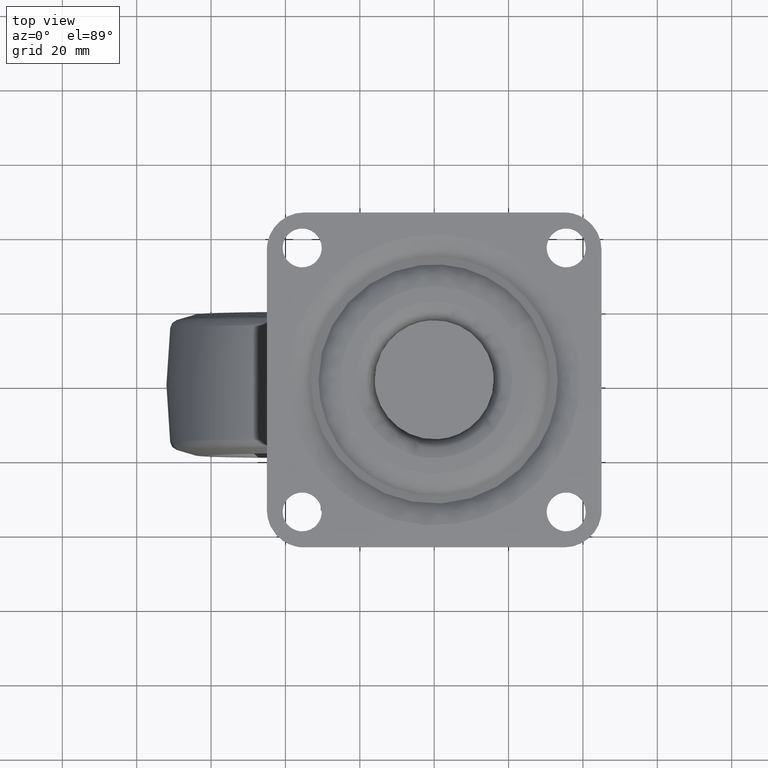
[diagram: clean part render]
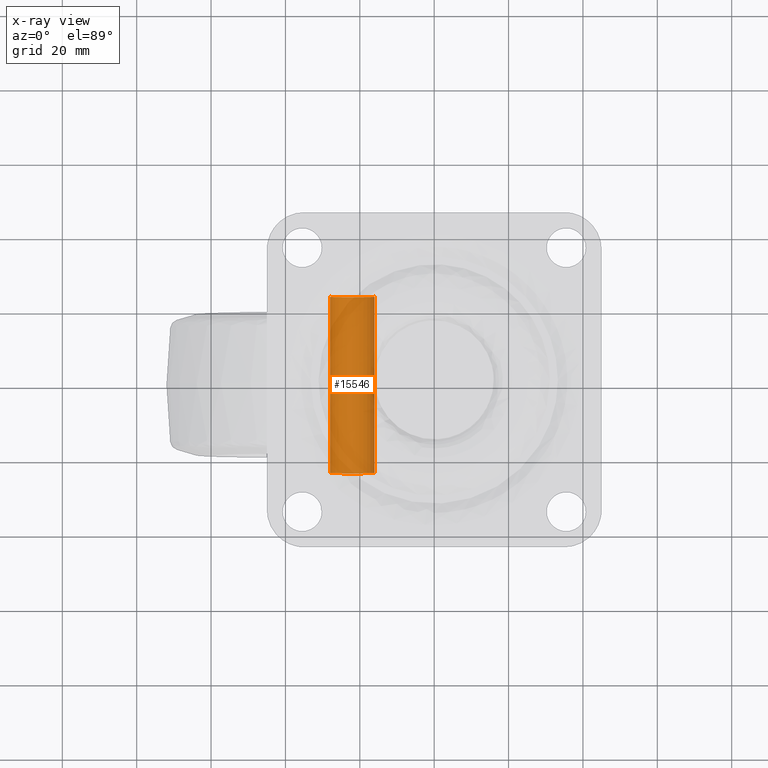
[diagram: x-ray — body ghosted, one internal face saturated and labeled with its STEP entity id]
A machine part, top view, then the same camera in x-ray: the body is ghosted and one INTERNAL B-rep face — a face not visible from any outside direction — is saturated and labeled: STEP entity #15546.
In plain terms, the highlighted face is a freeform B-spline surface patch.
Its self-contained STEP definition (entity closure, byte-faithful):
#15413=CARTESIAN_POINT('',(-22.0,23.699999999999999,-86.000199999999992));
#15414=VERTEX_POINT('',#15413);
#15415=CARTESIAN_POINT('',(-27.988808790510131,23.699999999999999,-80.366491237553674));
#15416=VERTEX_POINT('',#15415);
#15417=CARTESIAN_POINT('',(-22.0,23.699999999999999,-86.000199999999992));
#15418=CARTESIAN_POINT('',(-27.644236401108859,23.699999999999996,-86.000199999999992));
#15419=CARTESIAN_POINT('',(-27.988808790510127,23.699999999999999,-80.366491237553646));
#15427=(BOUNDED_CURVE()B_SPLINE_CURVE(2,(#15417,#15418,#15419),.UNSPECIFIED.,.F.,.U.)B_SPLINE_CURVE_WITH_KNOTS((3,3),(0.500000000000000,0.739332962232042),.UNSPECIFIED.)CURVE()GEOMETRIC_REPRESENTATION_ITEM()RATIONAL_B_SPLINE_CURVE((1.0,0.719603993294795,0.976072041651928))REPRESENTATION_ITEM(''));
#15428=EDGE_CURVE('',#15414,#15416,#15427,.T.);
#15447=CARTESIAN_POINT('',(-16.011191209489869,23.699999999999999,-79.633908762446310));
#15448=VERTEX_POINT('',#15447);
#15462=CARTESIAN_POINT('',(-16.011191209489873,23.700000000000003,-79.633908762446325));
#15463=CARTESIAN_POINT('',(-16.000000000000007,23.700000000000003,-79.816883420035722));
#15464=CARTESIAN_POINT('',(-16.0,23.699999999999999,-80.000199999999992));
#15465=CARTESIAN_POINT('',(-15.999999999999998,23.700000000000003,-86.000199999999992));
#15466=CARTESIAN_POINT('',(-22.0,23.699999999999999,-86.000199999999992));
#15474=(BOUNDED_CURVE()B_SPLINE_CURVE(2,(#15462,#15463,#15464,#15465,#15466),.UNSPECIFIED.,.F.,.U.)B_SPLINE_CURVE_WITH_KNOTS((3,2,3),(0.239332962232042,0.250000000000000,0.500000000000000),.UNSPECIFIED.)CURVE()GEOMETRIC_REPRESENTATION_ITEM()RATIONAL_B_SPLINE_CURVE((0.976072041651927,0.987502787891752,1.0,0.707106781186548,1.0))REPRESENTATION_ITEM(''));
#15475=EDGE_CURVE('',#15448,#15414,#15474,.T.);
#15480=CARTESIAN_POINT('',(-16.011191209468802,-24.885000000000009,-79.633908762790853));
#15481=CARTESIAN_POINT('',(-15.644899972259651,-24.885000000000005,-85.622717553322047));
#15482=CARTESIAN_POINT('',(-21.633708762790860,-24.885000000000009,-85.989008790531187));
#15483=CARTESIAN_POINT('',(-27.622517553322055,-24.885000000000005,-86.355300027740327));
#15484=CARTESIAN_POINT('',(-27.988808790531198,-24.885000000000009,-80.366491237209132));
#15485=CARTESIAN_POINT('',(-16.011191209468802,24.914625000000012,-79.633908762790853));
#15486=CARTESIAN_POINT('',(-15.644899972259651,24.914625000000004,-85.622717553322047));
#15487=CARTESIAN_POINT('',(-21.633708762790860,24.914625000000012,-85.989008790531187));
#15488=CARTESIAN_POINT('',(-27.622517553322055,24.914625000000004,-86.355300027740327));
#15489=CARTESIAN_POINT('',(-27.988808790531198,24.914625000000012,-80.366491237209132));
#15497=(BOUNDED_SURFACE()B_SPLINE_SURFACE(2,1,((#15480,#15485),(#15481,#15486),(#15482,#15487),(#15483,#15488),(#15484,#15489)),.UNSPECIFIED.,.F.,.F.,.U.)B_SPLINE_SURFACE_WITH_KNOTS((3,2,3),(2,2),(0.0,9.941125496954287,19.882250993908571),(0.0,49.799625000000027),.UNSPECIFIED.)GEOMETRIC_REPRESENTATION_ITEM()RATIONAL_B_SPLINE_SURFACE(((1.0,1.0),(0.707106781186548,0.707106781186548),(1.0,1.0),(0.707106781186548,0.707106781186548),(1.0,1.0)))REPRESENTATION_ITEM('')SURFACE());
#15498=CARTESIAN_POINT('',(-16.011191209489869,-23.699999999999999,-79.633908762446310));
#15499=VERTEX_POINT('',#15498);
#15500=CARTESIAN_POINT('',(-22.0,-23.699999999999999,-86.000199999999992));
#15501=VERTEX_POINT('',#15500);
#15502=CARTESIAN_POINT('',(-16.011191209489876,-23.699999999999996,-79.633908762446310));
#15503=CARTESIAN_POINT('',(-16.000000000000004,-23.699999999999996,-79.816883420035708));
#15504=CARTESIAN_POINT('',(-16.0,-23.699999999999999,-80.000199999999992));
#15505=CARTESIAN_POINT('',(-15.999999999999998,-23.700000000000003,-86.000199999999992));
#15506=CARTESIAN_POINT('',(-22.0,-23.699999999999999,-86.000199999999992));
#15514=(BOUNDED_CURVE()B_SPLINE_CURVE(2,(#15502,#15503,#15504,#15505,#15506),.UNSPECIFIED.,.F.,.U.)B_SPLINE_CURVE_WITH_KNOTS((3,2,3),(0.239332962232041,0.250000000000000,0.500000000000000),.UNSPECIFIED.)CURVE()GEOMETRIC_REPRESENTATION_ITEM()RATIONAL_B_SPLINE_CURVE((0.976072041651926,0.987502787891752,1.0,0.707106781186548,1.0))REPRESENTATION_ITEM(''));
#15515=EDGE_CURVE('',#15499,#15501,#15514,.T.);
#15516=ORIENTED_EDGE('',*,*,#15515,.T.);
#15517=CARTESIAN_POINT('',(-27.988808790510131,-23.699999999999999,-80.366491237553674));
#15518=VERTEX_POINT('',#15517);
#15519=CARTESIAN_POINT('',(-22.0,-23.699999999999999,-86.000199999999992));
#15520=CARTESIAN_POINT('',(-27.644236401108849,-23.699999999999999,-86.000200000000007));
#15521=CARTESIAN_POINT('',(-27.988808790510127,-23.699999999999999,-80.366491237553689));
#15529=(BOUNDED_CURVE()B_SPLINE_CURVE(2,(#15519,#15520,#15521),.UNSPECIFIED.,.F.,.U.)B_SPLINE_CURVE_WITH_KNOTS((3,3),(0.500000000000000,0.739332962232041),.UNSPECIFIED.)CURVE()GEOMETRIC_REPRESENTATION_ITEM()RATIONAL_B_SPLINE_CURVE((1.0,0.719603993294796,0.976072041651927))REPRESENTATION_ITEM(''));
#15530=EDGE_CURVE('',#15501,#15518,#15529,.T.);
#15531=ORIENTED_EDGE('',*,*,#15530,.T.);
#15532=CARTESIAN_POINT('',(-27.988808790510131,-23.699999999999999,-80.366491237553674));
#15533=CARTESIAN_POINT('',(-27.988808790510131,23.699999999999999,-80.366491237553674));
#15534=QUASI_UNIFORM_CURVE('',1,(#15532,#15533),.UNSPECIFIED.,.F.,.U.);
#15535=EDGE_CURVE('',#15518,#15416,#15534,.T.);
#15536=ORIENTED_EDGE('',*,*,#15535,.T.);
#15537=ORIENTED_EDGE('',*,*,#15428,.F.);
#15538=ORIENTED_EDGE('',*,*,#15475,.F.);
#15539=CARTESIAN_POINT('',(-16.011191209489869,-23.699999999999999,-79.633908762446310));
#15540=CARTESIAN_POINT('',(-16.011191209489869,23.699999999999999,-79.633908762446310));
#15541=QUASI_UNIFORM_CURVE('',1,(#15539,#15540),.UNSPECIFIED.,.F.,.U.);
#15542=EDGE_CURVE('',#15499,#15448,#15541,.T.);
#15543=ORIENTED_EDGE('',*,*,#15542,.F.);
#15544=EDGE_LOOP('',(#15516,#15531,#15536,#15537,#15538,#15543));
#15545=FACE_OUTER_BOUND('',#15544,.T.);
#15546=ADVANCED_FACE('',(#15545),#15497,.T.);